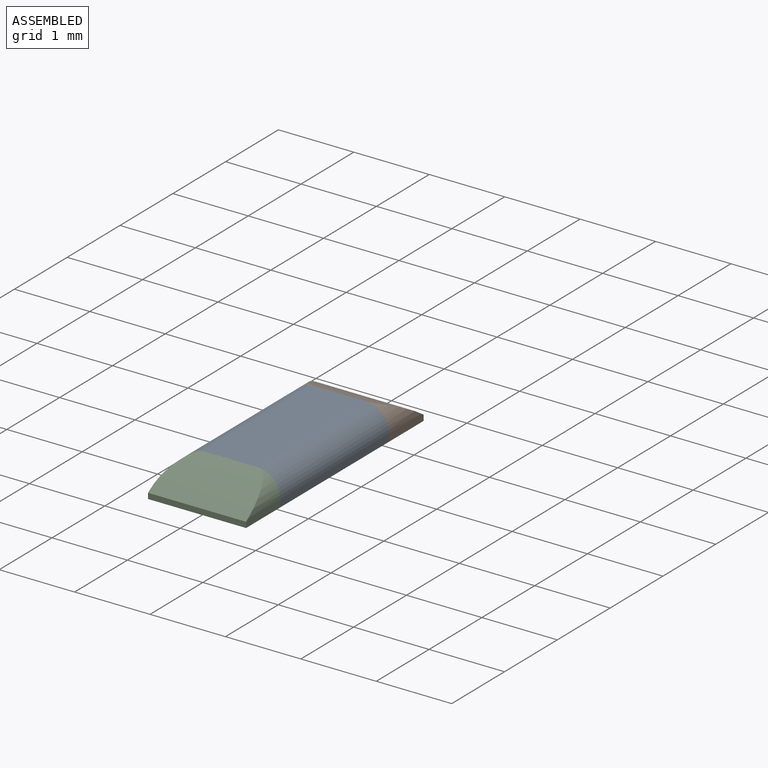
[diagram: assembled view]
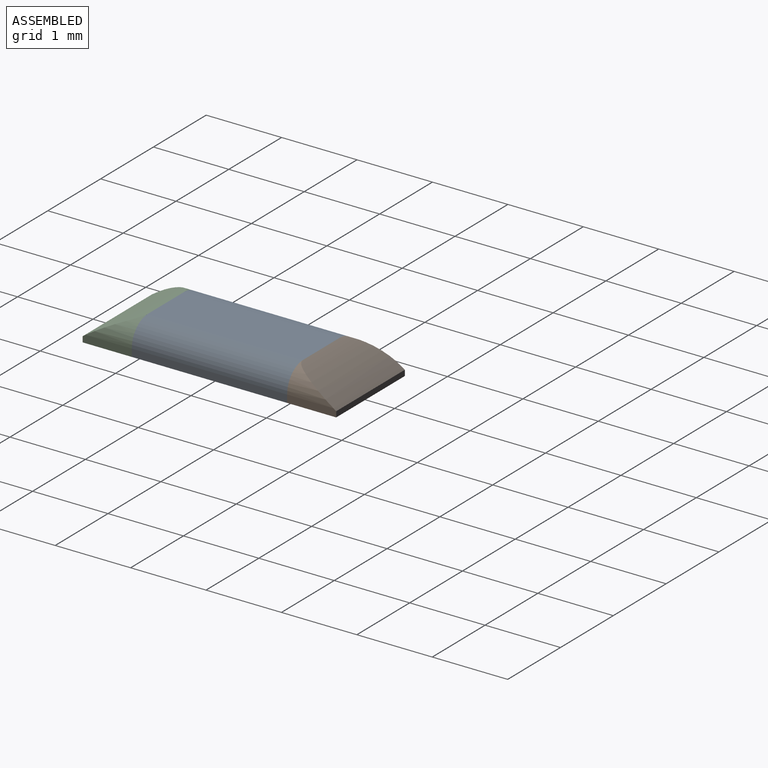
[diagram: assembled view, second angle]
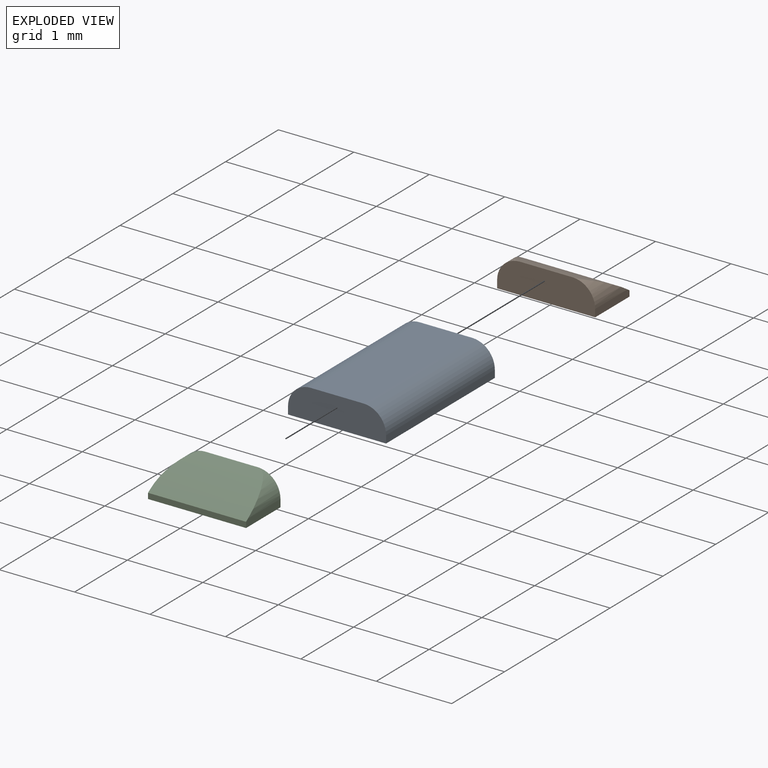
[diagram: exploded view]
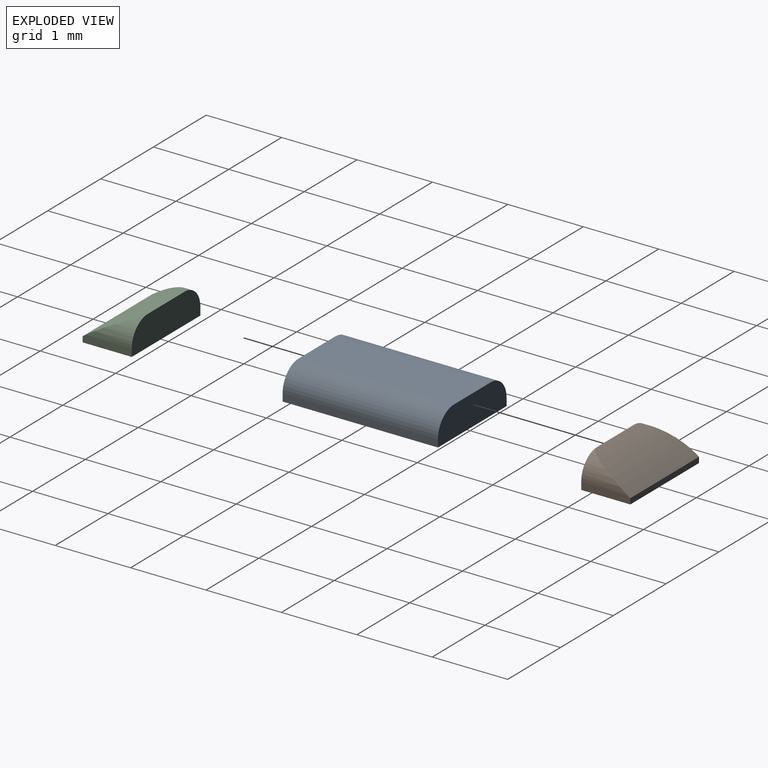
[diagram: exploded view, second angle]
ASSEMBLY  parts=3 mates=2
PART A: 8 faces, bbox 1.3x2.1x0.4 mm
  f0: plane 1.3x0.4mm, normal (0,-1,0), area 0.5mm2, adj f1,f3,f4,f5,f6,f7
  f1: plane 2.06x0.1mm, normal (1,0,0), area 0.2mm2, adj f0,f2,f5,f6
  f2: plane 1.3x0.4mm, normal (0,1,0), area 0.5mm2, adj f1,f3,f4,f5,f6,f7
  f3: plane 2.06x0.1mm, normal (-1,0,0), area 0.2mm2, adj f0,f2,f5,f7
  f4: plane 2.06x0.7mm, normal (0,0,1), area 1.4mm2, adj f0,f2,f6,f7
  f5: plane 2.06x1.3mm, normal (0,0,-1), area 2.7mm2, adj f0,f1,f2,f3
  f6: cylinder r=0.3mm len=2.06mm, axis (0,-1,0), area 1mm2, adj f0,f1,f2,f4
  f7: cylinder r=0.3mm len=2.06mm, axis (0,1,0), area 1mm2, adj f0,f2,f3,f4
PART B: 8 faces, bbox 1.3x0.7x0.4 mm
  f0: plane 0.65x0.1mm, normal (1,0,0), area 0.1mm2, adj f1,f4,f5,f6,f7
  f1: cylinder r=0.3mm len=0.61mm, axis (0,-1,0), area 0.1mm2, adj f0,f6,f7
  f2: cylinder r=0.3mm len=0.61mm, axis (0,-1,0), area 0.1mm2, adj f3,f6,f7
  f3: plane 0.65x0.1mm, normal (-1,0,0), area 0.1mm2, adj f2,f4,f5,f6,f7
  f4: plane 1.3x0.65mm, normal (0,0,-1), area 0.8mm2, adj f0,f3,f5,f6
  f5: plane 1.3x0.07mm, normal (0,1,0), area 0.1mm2, adj f0,f3,f4,f7
  f6: plane 1.3x0.4mm, normal (0,-1,0), area 0.5mm2, adj f0,f1,f2,f3,f4,f7
  f7: cylinder r=2.43mm len=1.3mm, axis (1,0,0), area 0.8mm2, adj f0,f1,f2,f3,f5,f6
PART C: 8 faces, bbox 1.3x0.7x0.4 mm
  f0: plane 0.65x0.1mm, normal (1,0,0), area 0.1mm2, adj f1,f4,f5,f6,f7
  f1: cylinder r=0.3mm len=0.61mm, axis (0,1,0), area 0.1mm2, adj f0,f6,f7
  f2: cylinder r=0.3mm len=0.61mm, axis (0,1,0), area 0.1mm2, adj f3,f6,f7
  f3: plane 0.65x0.1mm, normal (-1,0,0), area 0.1mm2, adj f2,f4,f5,f6,f7
  f4: plane 1.3x0.65mm, normal (0,0,-1), area 0.8mm2, adj f0,f3,f5,f6
  f5: plane 1.3x0.07mm, normal (0,-1,0), area 0.1mm2, adj f0,f3,f4,f7
  f6: plane 1.3x0.4mm, normal (0,1,0), area 0.5mm2, adj f0,f1,f2,f3,f4,f7
  f7: cylinder r=2.43mm len=1.3mm, axis (1,0,0), area 0.8mm2, adj f0,f1,f2,f3,f5,f6
PLACE A at identity
PLACE B at identity
PLACE C at identity
MATE fastened C.f6 <-> A.f0  axis (0,1,0) through (0.35,-1.03,0.4)mm
MATE fastened B.f6 <-> A.f2  axis (0,-1,0) through (-0.35,1.03,0.4)mm
